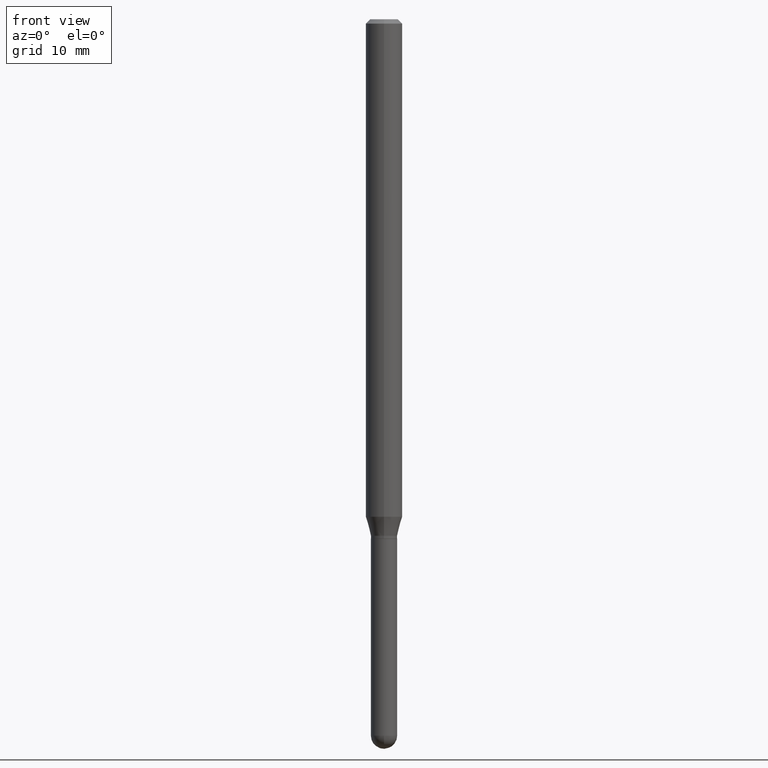
[diagram: clean part render]
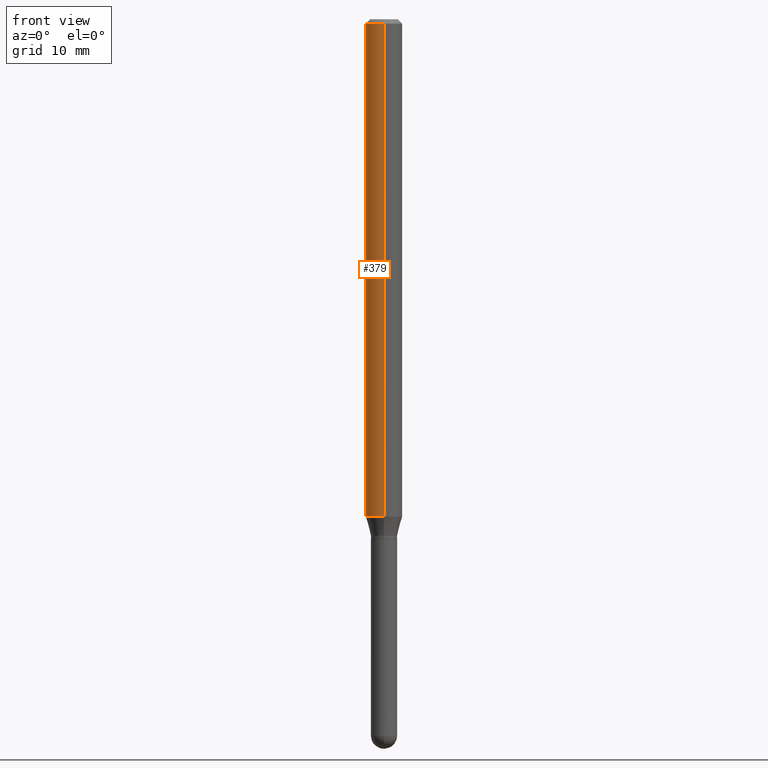
[diagram: same view with one face highlighted and labeled with its STEP entity id]
A machine part, front view. The second image highlights one B-rep face of the part: STEP entity #379.
In plain terms, the highlighted cylindrical surface (edge-blend (fillet) strip) has radius 1.5875 mm, axis along (-0, 0, 1).
Its self-contained STEP definition (entity closure, byte-faithful):
#14 = DIRECTION ( 'NONE',  ( -6.982962677686265922E-15, -1.000000000000000000, 3.491581986293447369E-15 ) ) ;
#32 = EDGE_CURVE ( 'NONE', #385, #72, #230, .T. ) ;
#37 = VECTOR ( 'NONE', #127, 39.37007874015748143 ) ;
#50 = LINE ( 'NONE', #476, #251 ) ;
#69 = ORIENTED_EDGE ( 'NONE', *, *, #488, .F. ) ;
#72 = VERTEX_POINT ( 'NONE', #166 ) ;
#77 = FACE_OUTER_BOUND ( 'NONE', #412, .T. ) ;
#83 = DIRECTION ( 'NONE',  ( -6.982962677686265922E-15, -1.000000000000000000, 4.370956789862821150E-15 ) ) ;
#84 = CARTESIAN_POINT ( 'NONE',  ( -4.364351673553916201E-16, -0.06250000000000000000, 2.182238741433404605E-16 ) ) ;
#90 = CIRCLE ( 'NONE', #382, 0.06250000000000000000 ) ;
#93 = CARTESIAN_POINT ( 'NONE',  ( -4.364351673553497119E-16, -0.06250000000000591194, -1.704689110867545487 ) ) ;
#97 = DIRECTION ( 'NONE',  ( -6.982962677686265922E-15, -1.000000000000000000, 3.483106191921935554E-15 ) ) ;
#118 = ORIENTED_EDGE ( 'NONE', *, *, #504, .T. ) ;
#125 = CYLINDRICAL_SURFACE ( 'NONE', #507, 0.06250000000000000000 ) ;
#127 = DIRECTION ( 'NONE',  ( -2.445398524446230422E-29, 3.491581986293447369E-15, 1.000000000000000000 ) ) ;
#166 = CARTESIAN_POINT ( 'NONE',  ( -4.364351673553912750E-16, -0.06250000000000005551, -0.01499999999999979128 ) ) ;
#171 = EDGE_CURVE ( 'NONE', #343, #72, #90, .T. ) ;
#211 = CARTESIAN_POINT ( 'NONE',  ( 4.440892098501044258E-16, 0.06249999999999408112, -1.704689110867546153 ) ) ;
#230 = LINE ( 'NONE', #84, #37 ) ;
#251 = VECTOR ( 'NONE', #325, 39.37007874015748143 ) ;
#278 = CARTESIAN_POINT ( 'NONE',  ( 4.168644236355052807E-29, -5.952061791735716845E-15, -1.704689110867545931 ) ) ;
#283 = DIRECTION ( 'NONE',  ( -2.445398524446230422E-29, 3.491581986293447369E-15, 1.000000000000000000 ) ) ;
#291 = DIRECTION ( 'NONE',  ( -2.445398524446230422E-29, 3.491581986293447369E-15, 1.000000000000000000 ) ) ;
#302 = ORIENTED_EDGE ( 'NONE', *, *, #171, .F. ) ;
#320 = CIRCLE ( 'NONE', #390, 0.06250000000000000000 ) ;
#325 = DIRECTION ( 'NONE',  ( -2.445398524446230422E-29, 3.491581986293447369E-15, 1.000000000000000000 ) ) ;
#343 = VERTEX_POINT ( 'NONE', #355 ) ;
#355 = CARTESIAN_POINT ( 'NONE',  ( 4.440892098501046230E-16, 0.06249999999999995143, -0.01500000000000022669 ) ) ;
#379 = ADVANCED_FACE ( 'NONE', ( #77 ), #125, .T. ) ;
#382 = AXIS2_PLACEMENT_3D ( 'NONE', #489, #291, #97 ) ;
#385 = VERTEX_POINT ( 'NONE', #93 ) ;
#390 = AXIS2_PLACEMENT_3D ( 'NONE', #278, #397, #83 ) ;
#397 = DIRECTION ( 'NONE',  ( -2.445398524446230422E-29, 3.491581986293447369E-15, 1.000000000000000000 ) ) ;
#412 = EDGE_LOOP ( 'NONE', ( #69, #118, #512, #302 ) ) ;
#429 = VERTEX_POINT ( 'NONE', #211 ) ;
#439 = CARTESIAN_POINT ( 'NONE',  ( 0.000000000000000000, 0.000000000000000000, 0.000000000000000000 ) ) ;
#476 = CARTESIAN_POINT ( 'NONE',  ( 4.440892098500625669E-16, 0.06250000000000000000, -2.182238741433404605E-16 ) ) ;
#488 = EDGE_CURVE ( 'NONE', #429, #343, #50, .T. ) ;
#489 = CARTESIAN_POINT ( 'NONE',  ( 3.668097786669347876E-31, -5.237372979440174110E-17, -0.01500000000000000812 ) ) ;
#504 = EDGE_CURVE ( 'NONE', #429, #385, #320, .T. ) ;
#507 = AXIS2_PLACEMENT_3D ( 'NONE', #439, #283, #14 ) ;
#512 = ORIENTED_EDGE ( 'NONE', *, *, #32, .T. ) ;